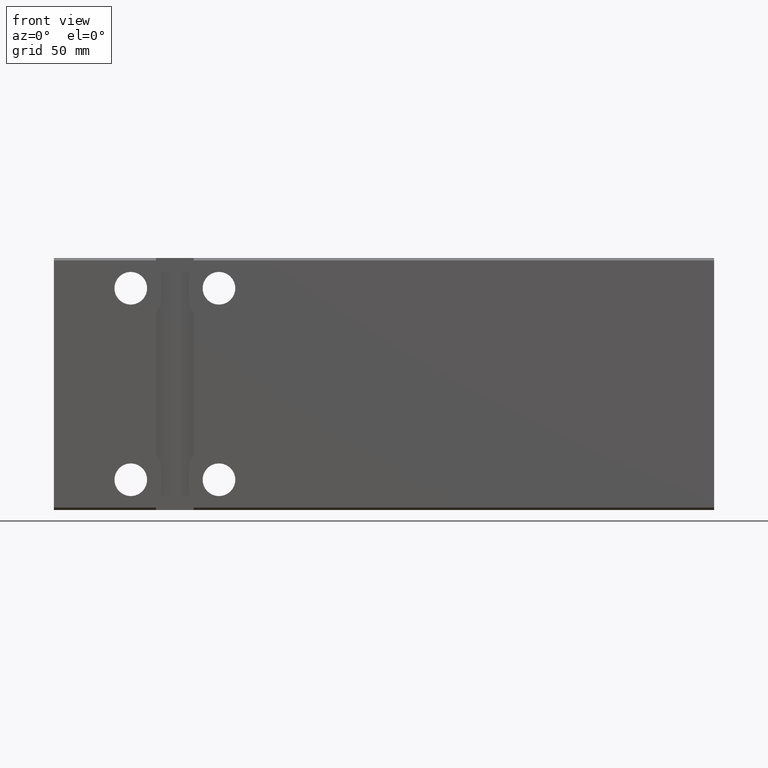
[diagram: clean part render]
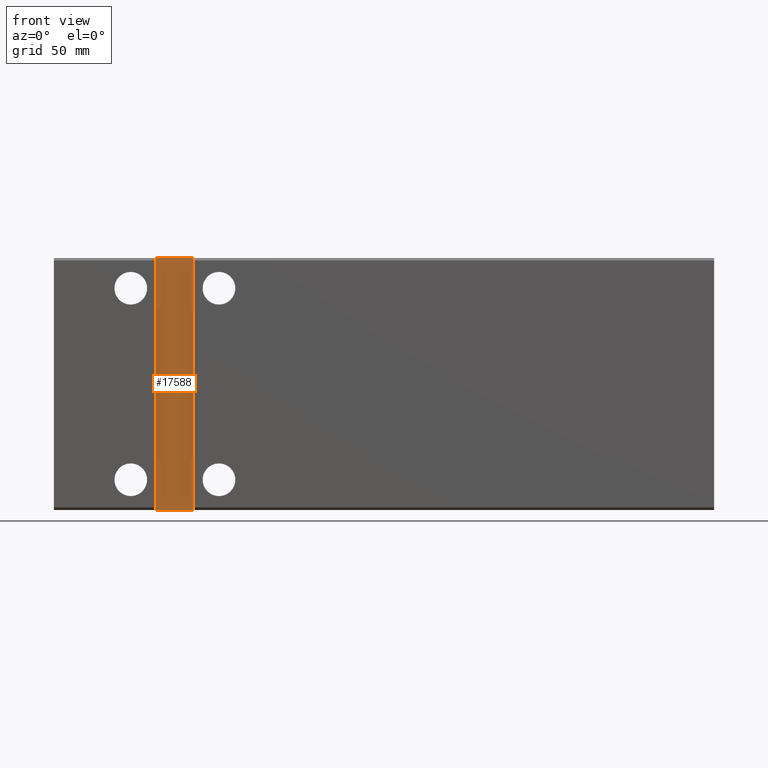
[diagram: same view with one face highlighted and labeled with its STEP entity id]
A machine part, front view. The second image highlights one B-rep face of the part: STEP entity #17588.
In plain terms, the highlighted planar face has unit normal (0, -1, 0).
Its self-contained STEP definition (entity closure, byte-faithful):
#161 = VECTOR ( 'NONE', #5062, 1000.000000000000000 ) ;
#541 = DIRECTION ( 'NONE',  ( -6.938893903907229610E-17, -0.000000000000000000, 1.000000000000000000 ) ) ;
#2166 = PLANE ( 'NONE',  #34219 ) ;
#2761 = VECTOR ( 'NONE', #32760, 1000.000000000000000 ) ;
#3007 = ORIENTED_EDGE ( 'NONE', *, *, #4305, .T. ) ;
#3474 = VECTOR ( 'NONE', #3695, 1000.000000000000000 ) ;
#3695 = DIRECTION ( 'NONE',  ( 1.000000000000000000, 0.000000000000000000, 0.000000000000000000 ) ) ;
#3903 = LINE ( 'NONE', #7413, #3474 ) ;
#4305 = EDGE_CURVE ( 'NONE', #28971, #21451, #13698, .T. ) ;
#5062 = DIRECTION ( 'NONE',  ( -1.000000000000000000, -0.000000000000000000, -0.000000000000000000 ) ) ;
#6938 = VERTEX_POINT ( 'NONE', #31543 ) ;
#7411 = EDGE_CURVE ( 'NONE', #21451, #27059, #3903, .T. ) ;
#7413 = CARTESIAN_POINT ( 'NONE',  ( 40.50000000000002132, -35.50000000000001421, -50.00000000000000000 ) ) ;
#9881 = EDGE_LOOP ( 'NONE', ( #40236, #35194, #3007, #23944 ) ) ;
#11710 = DIRECTION ( 'NONE',  ( 0.000000000000000000, -0.000000000000000000, -1.000000000000000000 ) ) ;
#12958 = CARTESIAN_POINT ( 'NONE',  ( 55.50000000000000711, -35.50000000000001421, -50.00000000000000000 ) ) ;
#12993 = CARTESIAN_POINT ( 'NONE',  ( 55.50000000000000000, -35.50000000000001421, 49.99999999999998579 ) ) ;
#13698 = LINE ( 'NONE', #26333, #2761 ) ;
#14415 = DIRECTION ( 'NONE',  ( 0.000000000000000000, -1.000000000000000000, 0.000000000000000000 ) ) ;
#17588 = ADVANCED_FACE ( 'NONE', ( #29963 ), #2166, .T. ) ;
#18322 = LINE ( 'NONE', #33869, #161 ) ;
#21040 = VECTOR ( 'NONE', #541, 1000.000000000000000 ) ;
#21451 = VERTEX_POINT ( 'NONE', #32647 ) ;
#22215 = EDGE_CURVE ( 'NONE', #27059, #6938, #37871, .T. ) ;
#23944 = ORIENTED_EDGE ( 'NONE', *, *, #7411, .T. ) ;
#26333 = CARTESIAN_POINT ( 'NONE',  ( 40.50000000000000000, -35.50000000000001421, 49.99999999999998579 ) ) ;
#27059 = VERTEX_POINT ( 'NONE', #12958 ) ;
#27973 = EDGE_CURVE ( 'NONE', #6938, #28971, #18322, .T. ) ;
#28971 = VERTEX_POINT ( 'NONE', #40093 ) ;
#29963 = FACE_OUTER_BOUND ( 'NONE', #9881, .T. ) ;
#31543 = CARTESIAN_POINT ( 'NONE',  ( 55.50000000000000000, -35.50000000000001421, 49.99999999999998579 ) ) ;
#32647 = CARTESIAN_POINT ( 'NONE',  ( 40.50000000000002132, -35.50000000000001421, -50.00000000000000000 ) ) ;
#32760 = DIRECTION ( 'NONE',  ( 2.081668171172169006E-16, 0.000000000000000000, -1.000000000000000000 ) ) ;
#33869 = CARTESIAN_POINT ( 'NONE',  ( 40.50000000000000000, -35.50000000000001421, 49.99999999999998579 ) ) ;
#34219 = AXIS2_PLACEMENT_3D ( 'NONE', #39697, #14415, #11710 ) ;
#35194 = ORIENTED_EDGE ( 'NONE', *, *, #27973, .T. ) ;
#37871 = LINE ( 'NONE', #12993, #21040 ) ;
#39697 = CARTESIAN_POINT ( 'NONE',  ( 0.000000000000000000, -35.50000000000001421, 1.101411730778925047E-16 ) ) ;
#40093 = CARTESIAN_POINT ( 'NONE',  ( 40.50000000000000000, -35.50000000000001421, 49.99999999999998579 ) ) ;
#40236 = ORIENTED_EDGE ( 'NONE', *, *, #22215, .T. ) ;